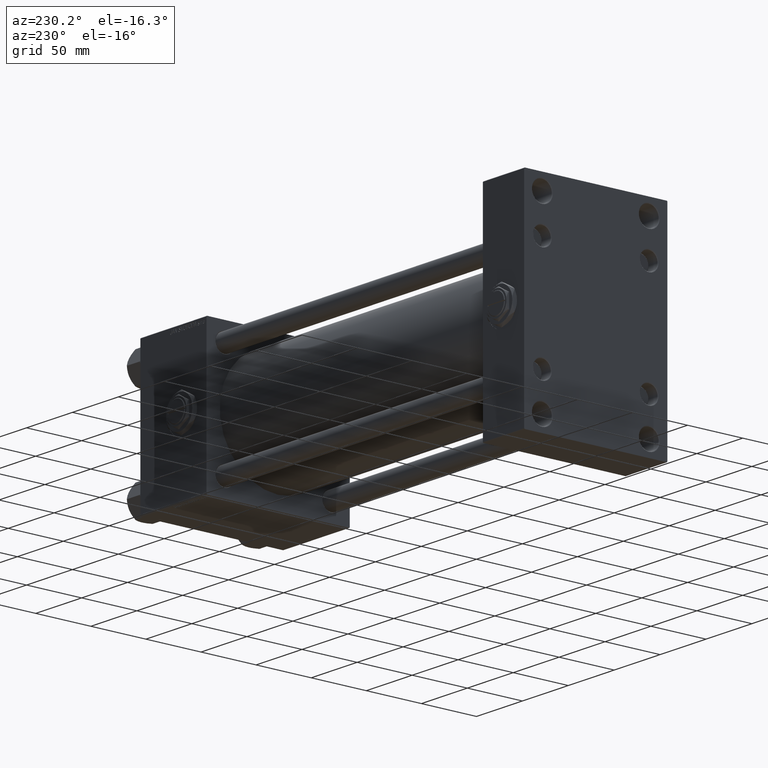
[diagram: clean part render]
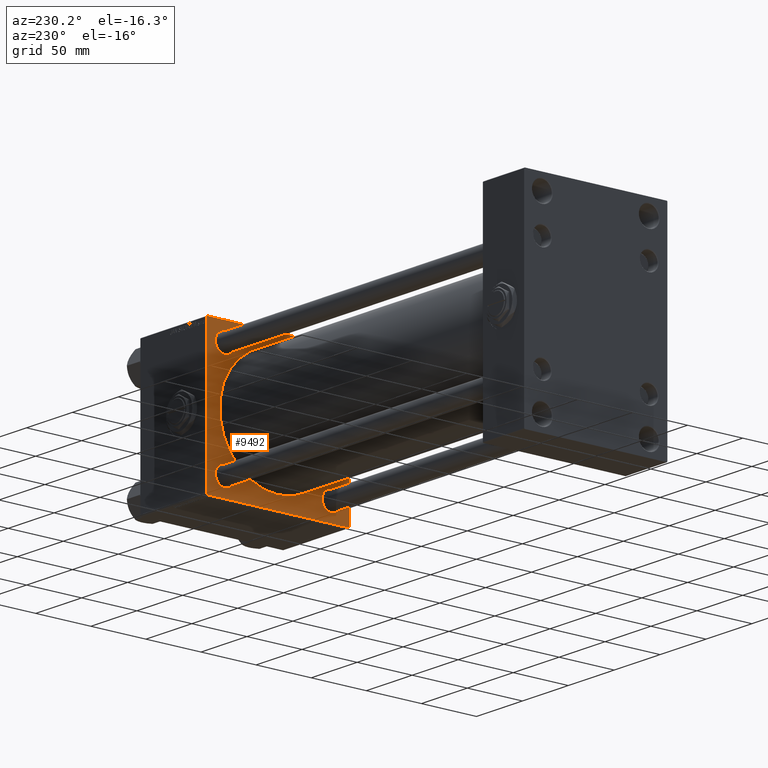
[diagram: same view with one face highlighted and labeled with its STEP entity id]
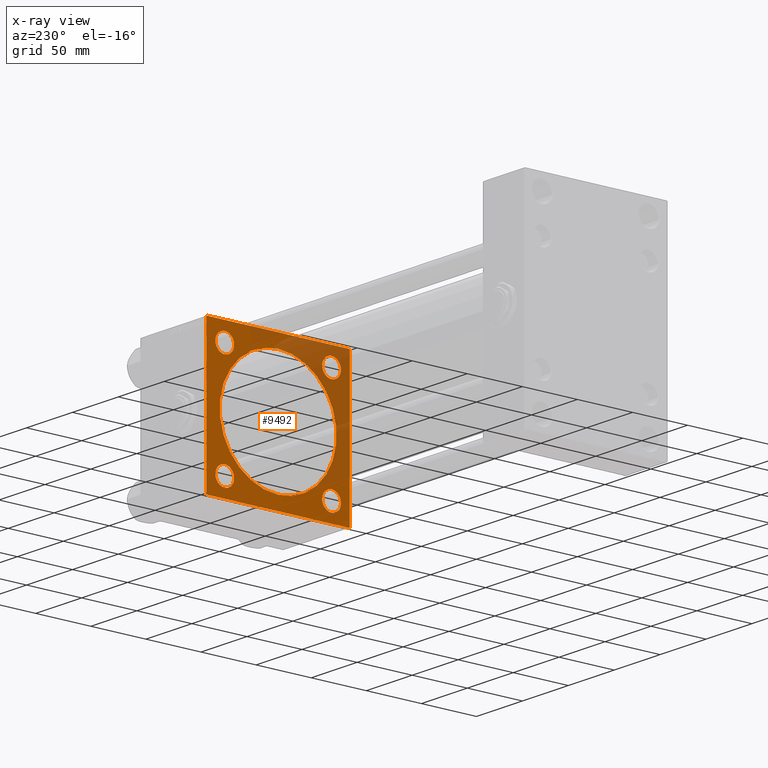
[diagram: x-ray of the same camera — body ghosted, the highlighted face saturated]
A machine part, auxiliary view. The second image highlights one B-rep face of the part: STEP entity #9492.
The next image is the same camera in x-ray: the body ghosted, the highlighted face saturated — about 35% of this face is hidden behind the body in this view.
In plain terms, the highlighted planar face has unit normal (-1, 0, 0).
Its self-contained STEP definition (entity closure, byte-faithful):
#762 = CIRCLE ( 'NONE', #5846, 8.500000000000007105 ) ;
#1174 = CARTESIAN_POINT ( 'NONE',  ( 346.0000000000000000, -2.602085213965210642E-15, 0.000000000000000000 ) ) ;
#2092 = VERTEX_POINT ( 'NONE', #31937 ) ;
#2634 = VERTEX_POINT ( 'NONE', #12413 ) ;
#2916 = PLANE ( 'NONE',  #8955 ) ;
#3174 = EDGE_LOOP ( 'NONE', ( #49009, #49252 ) ) ;
#3181 = VECTOR ( 'NONE', #8907, 1000.000000000000114 ) ;
#3648 = CARTESIAN_POINT ( 'NONE',  ( 346.0000000000000000, 48.45000000000000995, 48.45000000000001705 ) ) ;
#4314 = EDGE_CURVE ( 'NONE', #2634, #43977, #35170, .T. ) ;
#4432 = EDGE_LOOP ( 'NONE', ( #4471, #22267 ) ) ;
#4471 = ORIENTED_EDGE ( 'NONE', *, *, #4946, .T. ) ;
#4909 = VERTEX_POINT ( 'NONE', #28738 ) ;
#4946 = EDGE_CURVE ( 'NONE', #4909, #41797, #31774, .T. ) ;
#5563 = DIRECTION ( 'NONE',  ( 0.000000000000000000, 0.000000000000000000, 1.000000000000000000 ) ) ;
#5641 = CARTESIAN_POINT ( 'NONE',  ( 346.0000000000000000, 64.49999999999997158, -64.99999999999998579 ) ) ;
#5775 = DIRECTION ( 'NONE',  ( -0.000000000000000000, 0.7071067811865573427, 0.7071067811865376918 ) ) ;
#5846 = AXIS2_PLACEMENT_3D ( 'NONE', #32480, #12250, #24743 ) ;
#5879 = ORIENTED_EDGE ( 'NONE', *, *, #4314, .T. ) ;
#6270 = EDGE_CURVE ( 'NONE', #49335, #29877, #39542, .T. ) ;
#6660 = EDGE_CURVE ( 'NONE', #41797, #4909, #25011, .T. ) ;
#6906 = FACE_BOUND ( 'NONE', #3174, .T. ) ;
#7083 = CARTESIAN_POINT ( 'NONE',  ( 346.0000000000000000, -64.99999999999998579, 65.00000000000000000 ) ) ;
#7297 = LINE ( 'NONE', #35217, #40174 ) ;
#8255 = LINE ( 'NONE', #15450, #11259 ) ;
#8625 = AXIS2_PLACEMENT_3D ( 'NONE', #1174, #38671, #46659 ) ;
#8907 = DIRECTION ( 'NONE',  ( -0.000000000000000000, -0.7071067811865474617, -0.7071067811865474617 ) ) ;
#8955 = AXIS2_PLACEMENT_3D ( 'NONE', #47867, #11660, #19128 ) ;
#9211 = EDGE_CURVE ( 'NONE', #47171, #33148, #51469, .T. ) ;
#9492 = ADVANCED_FACE ( 'NONE', ( #6906, #15665, #36408, #31908, #20165, #10885 ), #2916, .T. ) ;
#10860 = VERTEX_POINT ( 'NONE', #17932 ) ;
#10885 = FACE_OUTER_BOUND ( 'NONE', #46703, .T. ) ;
#10947 = CARTESIAN_POINT ( 'NONE',  ( 346.0000000000000000, 48.45000000000000995, 39.95000000000011653 ) ) ;
#11259 = VECTOR ( 'NONE', #27697, 1000.000000000000000 ) ;
#11660 = DIRECTION ( 'NONE',  ( -1.000000000000000000, 0.000000000000000000, -0.000000000000000000 ) ) ;
#11813 = ORIENTED_EDGE ( 'NONE', *, *, #28875, .T. ) ;
#12090 = EDGE_CURVE ( 'NONE', #31679, #49450, #13951, .T. ) ;
#12250 = DIRECTION ( 'NONE',  ( 1.000000000000000000, -0.000000000000000000, 0.000000000000000000 ) ) ;
#12336 = DIRECTION ( 'NONE',  ( 0.000000000000000000, 0.000000000000000000, -1.000000000000000000 ) ) ;
#12413 = CARTESIAN_POINT ( 'NONE',  ( 346.0000000000000000, 48.45000000000000995, -56.95000000000002416 ) ) ;
#12460 = ORIENTED_EDGE ( 'NONE', *, *, #9211, .T. ) ;
#13045 = AXIS2_PLACEMENT_3D ( 'NONE', #33993, #46237, #50215 ) ;
#13390 = DIRECTION ( 'NONE',  ( 0.000000000000000000, 0.000000000000000000, 1.000000000000000000 ) ) ;
#13951 = LINE ( 'NONE', #45617, #3181 ) ;
#14049 = CARTESIAN_POINT ( 'NONE',  ( 346.0000000000000000, 48.45000000000000995, 56.94999999999991047 ) ) ;
#14080 = AXIS2_PLACEMENT_3D ( 'NONE', #40009, #16559, #33054 ) ;
#14320 = CIRCLE ( 'NONE', #17728, 8.499999999999896971 ) ;
#14498 = ORIENTED_EDGE ( 'NONE', *, *, #12090, .T. ) ;
#14838 = CARTESIAN_POINT ( 'NONE',  ( 346.0000000000000000, 65.00000000000002842, 64.49999999999995737 ) ) ;
#15168 = ORIENTED_EDGE ( 'NONE', *, *, #42538, .T. ) ;
#15450 = CARTESIAN_POINT ( 'NONE',  ( 346.0000000000000000, 65.00000000000002842, -64.99999999999998579 ) ) ;
#15665 = FACE_BOUND ( 'NONE', #26678, .T. ) ;
#16144 = ORIENTED_EDGE ( 'NONE', *, *, #46213, .T. ) ;
#16343 = CARTESIAN_POINT ( 'NONE',  ( 346.0000000000000000, 48.45000000000000995, -48.45000000000001705 ) ) ;
#16387 = ORIENTED_EDGE ( 'NONE', *, *, #6270, .F. ) ;
#16409 = ORIENTED_EDGE ( 'NONE', *, *, #24303, .T. ) ;
#16559 = DIRECTION ( 'NONE',  ( 1.000000000000000000, -0.000000000000000000, 0.000000000000000000 ) ) ;
#16718 = VERTEX_POINT ( 'NONE', #33743 ) ;
#17096 = EDGE_CURVE ( 'NONE', #16718, #10860, #36658, .T. ) ;
#17180 = CARTESIAN_POINT ( 'NONE',  ( 346.0000000000000000, -64.74999999999913314, 64.75000000000093792 ) ) ;
#17728 = AXIS2_PLACEMENT_3D ( 'NONE', #3648, #47813, #31850 ) ;
#17756 = CARTESIAN_POINT ( 'NONE',  ( 346.0000000000000000, -48.44999999999999574, 56.95000000000003837 ) ) ;
#17932 = CARTESIAN_POINT ( 'NONE',  ( 346.0000000000000000, 3.888542821515762466E-15, -53.00000000000000711 ) ) ;
#18014 = CARTESIAN_POINT ( 'NONE',  ( 346.0000000000000000, -48.44999999999999574, 39.95000000000001705 ) ) ;
#18130 = CARTESIAN_POINT ( 'NONE',  ( 346.0000000000000000, -48.44999999999999574, 48.45000000000003126 ) ) ;
#18189 = DIRECTION ( 'NONE',  ( 0.000000000000000000, -1.000000000000000000, -1.067522139062650425E-16 ) ) ;
#18270 = CIRCLE ( 'NONE', #48035, 8.500000000000007105 ) ;
#18430 = LINE ( 'NONE', #51415, #42008 ) ;
#18514 = DIRECTION ( 'NONE',  ( 0.000000000000000000, 0.000000000000000000, -1.000000000000000000 ) ) ;
#19128 = DIRECTION ( 'NONE',  ( -0.000000000000000000, 0.000000000000000000, 1.000000000000000000 ) ) ;
#20065 = CARTESIAN_POINT ( 'NONE',  ( 346.0000000000000000, 65.00000000000002842, 65.00000000000001421 ) ) ;
#20165 = FACE_BOUND ( 'NONE', #48057, .T. ) ;
#20267 = CARTESIAN_POINT ( 'NONE',  ( 346.0000000000000000, -48.44999999999999574, -48.45000000000003126 ) ) ;
#20581 = ORIENTED_EDGE ( 'NONE', *, *, #17096, .T. ) ;
#20715 = EDGE_CURVE ( 'NONE', #10860, #16718, #21446, .T. ) ;
#21446 = CIRCLE ( 'NONE', #51216, 53.00000000000000711 ) ;
#22267 = ORIENTED_EDGE ( 'NONE', *, *, #6660, .T. ) ;
#22555 = ORIENTED_EDGE ( 'NONE', *, *, #20715, .T. ) ;
#23436 = CARTESIAN_POINT ( 'NONE',  ( 346.0000000000000000, -64.74999999999816680, -64.75000000000176215 ) ) ;
#23609 = VERTEX_POINT ( 'NONE', #17756 ) ;
#24024 = CARTESIAN_POINT ( 'NONE',  ( 346.0000000000000000, -64.99999999999998579, 64.50000000000005684 ) ) ;
#24303 = EDGE_CURVE ( 'NONE', #34802, #52132, #18430, .T. ) ;
#24334 = VERTEX_POINT ( 'NONE', #38382 ) ;
#24743 = DIRECTION ( 'NONE',  ( 0.000000000000000000, 0.000000000000000000, 1.000000000000000000 ) ) ;
#25011 = CIRCLE ( 'NONE', #46294, 8.500000000000007105 ) ;
#25811 = AXIS2_PLACEMENT_3D ( 'NONE', #16343, #29111, #13390 ) ;
#26678 = EDGE_LOOP ( 'NONE', ( #49709, #12460 ) ) ;
#27448 = CARTESIAN_POINT ( 'NONE',  ( 346.0000000000000000, -48.44999999999999574, -56.95000000000003837 ) ) ;
#27697 = DIRECTION ( 'NONE',  ( 0.000000000000000000, -1.000000000000000000, -2.135044278125300850E-16 ) ) ;
#28449 = EDGE_CURVE ( 'NONE', #43726, #23609, #18270, .T. ) ;
#28530 = DIRECTION ( 'NONE',  ( 0.000000000000000000, 0.000000000000000000, 1.000000000000000000 ) ) ;
#28738 = CARTESIAN_POINT ( 'NONE',  ( 346.0000000000000000, -48.44999999999999574, -39.95000000000001705 ) ) ;
#28840 = LINE ( 'NONE', #20065, #41960 ) ;
#28862 = CARTESIAN_POINT ( 'NONE',  ( 346.0000000000000000, -64.99999999999998579, -64.49999999999997158 ) ) ;
#28875 = EDGE_CURVE ( 'NONE', #49335, #24334, #37684, .T. ) ;
#28891 = CARTESIAN_POINT ( 'NONE',  ( 346.0000000000000000, 65.00000000000002842, -64.49999999999992895 ) ) ;
#29111 = DIRECTION ( 'NONE',  ( 1.000000000000000000, -0.000000000000000000, 0.000000000000000000 ) ) ;
#29320 = VECTOR ( 'NONE', #5775, 1000.000000000000114 ) ;
#29877 = VERTEX_POINT ( 'NONE', #28862 ) ;
#31110 = DIRECTION ( 'NONE',  ( 1.000000000000000000, -0.000000000000000000, 0.000000000000000000 ) ) ;
#31671 = VECTOR ( 'NONE', #44187, 1000.000000000000000 ) ;
#31679 = VERTEX_POINT ( 'NONE', #28891 ) ;
#31774 = CIRCLE ( 'NONE', #45334, 8.500000000000007105 ) ;
#31813 = VECTOR ( 'NONE', #18514, 1000.000000000000000 ) ;
#31850 = DIRECTION ( 'NONE',  ( 0.000000000000000000, 0.000000000000000000, 1.000000000000000000 ) ) ;
#31908 = FACE_BOUND ( 'NONE', #4432, .T. ) ;
#31937 = CARTESIAN_POINT ( 'NONE',  ( 346.0000000000000000, -64.49999999999991473, -65.00000000000001421 ) ) ;
#32480 = CARTESIAN_POINT ( 'NONE',  ( 346.0000000000000000, 48.45000000000000995, -48.45000000000001705 ) ) ;
#33054 = DIRECTION ( 'NONE',  ( 0.000000000000000000, 0.000000000000000000, 1.000000000000000000 ) ) ;
#33148 = VERTEX_POINT ( 'NONE', #14049 ) ;
#33743 = CARTESIAN_POINT ( 'NONE',  ( 346.0000000000000000, -2.602085213965210642E-15, 53.00000000000000711 ) ) ;
#33993 = CARTESIAN_POINT ( 'NONE',  ( 346.0000000000000000, -48.44999999999999574, 48.45000000000003126 ) ) ;
#34370 = DIRECTION ( 'NONE',  ( 0.000000000000000000, 0.000000000000000000, 1.000000000000000000 ) ) ;
#34802 = VERTEX_POINT ( 'NONE', #39353 ) ;
#35170 = CIRCLE ( 'NONE', #25811, 8.500000000000007105 ) ;
#35177 = CIRCLE ( 'NONE', #13045, 8.500000000000007105 ) ;
#35217 = CARTESIAN_POINT ( 'NONE',  ( 346.0000000000000000, 65.00000000000002842, 65.00000000000001421 ) ) ;
#35422 = LINE ( 'NONE', #23436, #31671 ) ;
#36408 = FACE_BOUND ( 'NONE', #49072, .T. ) ;
#36658 = CIRCLE ( 'NONE', #8625, 53.00000000000000711 ) ;
#37421 = EDGE_CURVE ( 'NONE', #33148, #47171, #14320, .T. ) ;
#37684 = LINE ( 'NONE', #17180, #29320 ) ;
#38382 = CARTESIAN_POINT ( 'NONE',  ( 346.0000000000000000, -64.50000000000002842, 65.00000000000000000 ) ) ;
#38542 = CARTESIAN_POINT ( 'NONE',  ( 346.0000000000000000, -48.44999999999999574, -48.45000000000003126 ) ) ;
#38671 = DIRECTION ( 'NONE',  ( 1.000000000000000000, 0.000000000000000000, 0.000000000000000000 ) ) ;
#38926 = DIRECTION ( 'NONE',  ( 0.000000000000000000, 0.7071067811865474617, -0.7071067811865474617 ) ) ;
#39353 = CARTESIAN_POINT ( 'NONE',  ( 346.0000000000000000, 64.49999999999997158, 65.00000000000001421 ) ) ;
#39542 = LINE ( 'NONE', #7083, #31813 ) ;
#39771 = DIRECTION ( 'NONE',  ( 0.000000000000000000, 0.000000000000000000, -1.000000000000000000 ) ) ;
#39986 = DIRECTION ( 'NONE',  ( 1.000000000000000000, -0.000000000000000000, 0.000000000000000000 ) ) ;
#40009 = CARTESIAN_POINT ( 'NONE',  ( 346.0000000000000000, 48.45000000000000995, 48.45000000000001705 ) ) ;
#40174 = VECTOR ( 'NONE', #18189, 1000.000000000000000 ) ;
#41797 = VERTEX_POINT ( 'NONE', #27448 ) ;
#41960 = VECTOR ( 'NONE', #12336, 1000.000000000000000 ) ;
#42008 = VECTOR ( 'NONE', #38926, 1000.000000000000114 ) ;
#42538 = EDGE_CURVE ( 'NONE', #43977, #2634, #762, .T. ) ;
#43157 = DIRECTION ( 'NONE',  ( 1.000000000000000000, -0.000000000000000000, 0.000000000000000000 ) ) ;
#43391 = ORIENTED_EDGE ( 'NONE', *, *, #52504, .T. ) ;
#43726 = VERTEX_POINT ( 'NONE', #18014 ) ;
#43977 = VERTEX_POINT ( 'NONE', #50688 ) ;
#44187 = DIRECTION ( 'NONE',  ( 0.000000000000000000, -0.7071067811865672237, 0.7071067811865279218 ) ) ;
#44264 = CARTESIAN_POINT ( 'NONE',  ( 346.0000000000000000, -2.602085213965210642E-15, 0.000000000000000000 ) ) ;
#45334 = AXIS2_PLACEMENT_3D ( 'NONE', #38542, #31110, #5563 ) ;
#45617 = CARTESIAN_POINT ( 'NONE',  ( 346.0000000000000000, 64.74999999999997158, -64.74999999999997158 ) ) ;
#45649 = ORIENTED_EDGE ( 'NONE', *, *, #46270, .T. ) ;
#45962 = EDGE_CURVE ( 'NONE', #34802, #24334, #7297, .T. ) ;
#46213 = EDGE_CURVE ( 'NONE', #2092, #29877, #35422, .T. ) ;
#46237 = DIRECTION ( 'NONE',  ( 1.000000000000000000, -0.000000000000000000, 0.000000000000000000 ) ) ;
#46270 = EDGE_CURVE ( 'NONE', #49450, #2092, #8255, .T. ) ;
#46294 = AXIS2_PLACEMENT_3D ( 'NONE', #20267, #39986, #28530 ) ;
#46659 = DIRECTION ( 'NONE',  ( 0.000000000000000000, 0.000000000000000000, -1.000000000000000000 ) ) ;
#46703 = EDGE_LOOP ( 'NONE', ( #45649, #16144, #16387, #11813, #47885, #16409, #43391, #14498 ) ) ;
#47171 = VERTEX_POINT ( 'NONE', #10947 ) ;
#47813 = DIRECTION ( 'NONE',  ( 1.000000000000000000, -0.000000000000000000, 0.000000000000000000 ) ) ;
#47867 = CARTESIAN_POINT ( 'NONE',  ( 346.0000000000000000, 0.000000000000000000, 0.000000000000000000 ) ) ;
#47885 = ORIENTED_EDGE ( 'NONE', *, *, #45962, .F. ) ;
#48035 = AXIS2_PLACEMENT_3D ( 'NONE', #18130, #43157, #34370 ) ;
#48057 = EDGE_LOOP ( 'NONE', ( #20581, #22555 ) ) ;
#49009 = ORIENTED_EDGE ( 'NONE', *, *, #52119, .T. ) ;
#49072 = EDGE_LOOP ( 'NONE', ( #15168, #5879 ) ) ;
#49252 = ORIENTED_EDGE ( 'NONE', *, *, #28449, .T. ) ;
#49335 = VERTEX_POINT ( 'NONE', #24024 ) ;
#49450 = VERTEX_POINT ( 'NONE', #5641 ) ;
#49709 = ORIENTED_EDGE ( 'NONE', *, *, #37421, .T. ) ;
#50215 = DIRECTION ( 'NONE',  ( 0.000000000000000000, 0.000000000000000000, 1.000000000000000000 ) ) ;
#50688 = CARTESIAN_POINT ( 'NONE',  ( 346.0000000000000000, 48.45000000000000995, -39.95000000000000284 ) ) ;
#51216 = AXIS2_PLACEMENT_3D ( 'NONE', #44264, #51980, #39771 ) ;
#51415 = CARTESIAN_POINT ( 'NONE',  ( 346.0000000000000000, 64.74999999999998579, 64.74999999999998579 ) ) ;
#51469 = CIRCLE ( 'NONE', #14080, 8.499999999999896971 ) ;
#51980 = DIRECTION ( 'NONE',  ( 1.000000000000000000, 0.000000000000000000, 0.000000000000000000 ) ) ;
#52119 = EDGE_CURVE ( 'NONE', #23609, #43726, #35177, .T. ) ;
#52132 = VERTEX_POINT ( 'NONE', #14838 ) ;
#52504 = EDGE_CURVE ( 'NONE', #52132, #31679, #28840, .T. ) ;